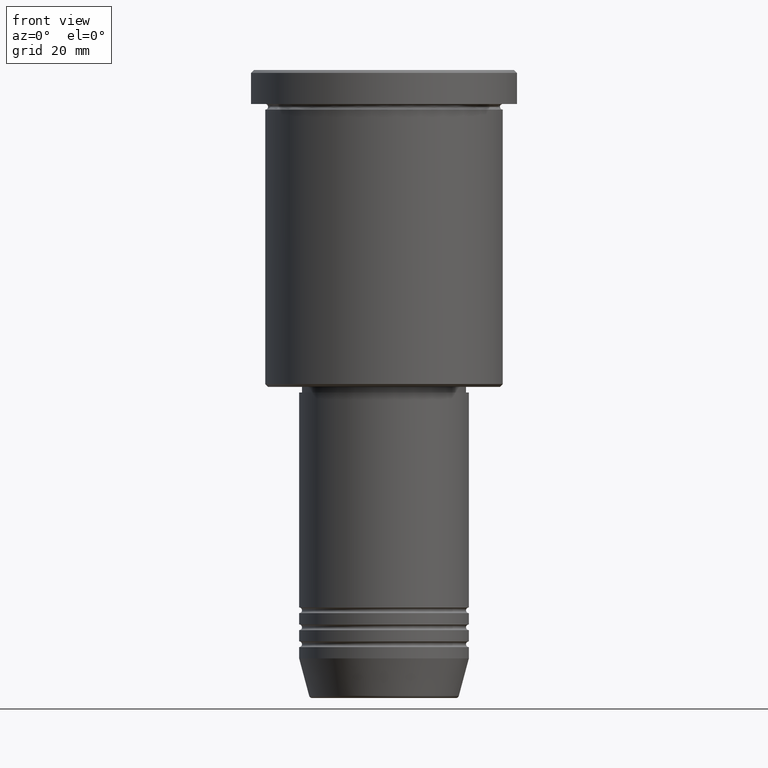
[diagram: clean part render]
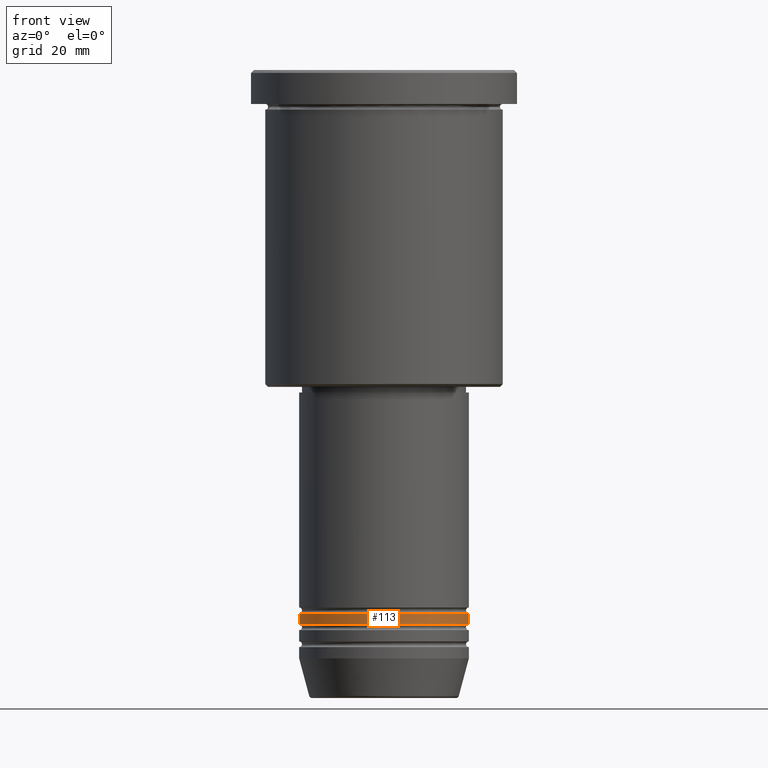
[diagram: same view with one face highlighted and labeled with its STEP entity id]
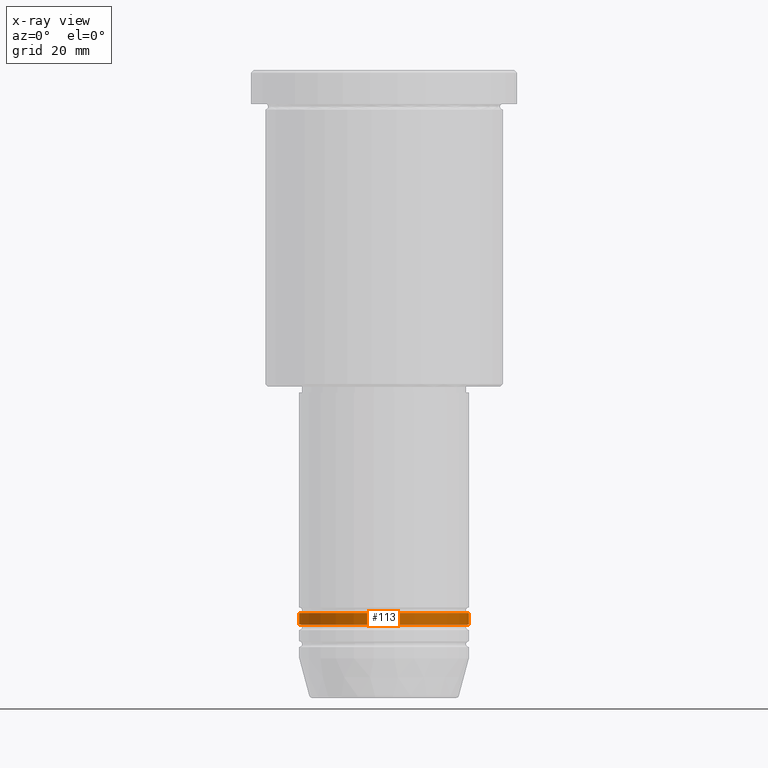
[diagram: x-ray of the same camera — body ghosted, the highlighted face saturated]
A machine part, front view. The second image highlights one B-rep face of the part: STEP entity #113.
The next image is the same camera in x-ray: the body ghosted, the highlighted face saturated — about 0% of this face is hidden behind the body in this view.
In plain terms, the highlighted cylindrical surface (partial cylindrical patch) has radius 15 mm, axis along (-0, -0, 1).
Its self-contained STEP definition (entity closure, byte-faithful):
#57 = DIRECTION ( 'NONE',  ( -0.000000000000000000, -0.000000000000000000, 1.000000000000000000 ) ) ;
#64 = FACE_OUTER_BOUND ( 'NONE', #1057, .T. ) ;
#105 = CARTESIAN_POINT ( 'NONE',  ( -15.00000000000000000, 1.836970198721029589E-15, -97.99999999999997158 ) ) ;
#108 = AXIS2_PLACEMENT_3D ( 'NONE', #229, #599, #958 ) ;
#113 = ADVANCED_FACE ( 'NONE', ( #64 ), #794, .T. ) ;
#184 = CARTESIAN_POINT ( 'NONE',  ( 0.000000000000000000, 0.000000000000000000, -97.99999999999997158 ) ) ;
#187 = EDGE_CURVE ( 'NONE', #1013, #789, #912, .T. ) ;
#229 = CARTESIAN_POINT ( 'NONE',  ( 0.000000000000000000, 0.000000000000000000, -95.99999999999998579 ) ) ;
#248 = CARTESIAN_POINT ( 'NONE',  ( 0.000000000000000000, 0.000000000000000000, 0.000000000000000000 ) ) ;
#327 = VERTEX_POINT ( 'NONE', #105 ) ;
#341 = VERTEX_POINT ( 'NONE', #402 ) ;
#370 = AXIS2_PLACEMENT_3D ( 'NONE', #248, #426, #970 ) ;
#397 = DIRECTION ( 'NONE',  ( -0.000000000000000000, -0.000000000000000000, 1.000000000000000000 ) ) ;
#402 = CARTESIAN_POINT ( 'NONE',  ( 15.00000000000000000, 0.000000000000000000, -97.99999999999997158 ) ) ;
#426 = DIRECTION ( 'NONE',  ( -0.000000000000000000, -0.000000000000000000, 1.000000000000000000 ) ) ;
#493 = ORIENTED_EDGE ( 'NONE', *, *, #714, .T. ) ;
#499 = LINE ( 'NONE', #524, #701 ) ;
#501 = ORIENTED_EDGE ( 'NONE', *, *, #575, .F. ) ;
#524 = CARTESIAN_POINT ( 'NONE',  ( -15.00000000000000000, 1.836970198721029589E-15, 0.000000000000000000 ) ) ;
#557 = CARTESIAN_POINT ( 'NONE',  ( 15.00000000000000000, 0.000000000000000000, 0.000000000000000000 ) ) ;
#575 = EDGE_CURVE ( 'NONE', #327, #1013, #499, .T. ) ;
#596 = CARTESIAN_POINT ( 'NONE',  ( 15.00000000000000000, 0.000000000000000000, -95.99999999999998579 ) ) ;
#599 = DIRECTION ( 'NONE',  ( -0.000000000000000000, -0.000000000000000000, 1.000000000000000000 ) ) ;
#621 = CARTESIAN_POINT ( 'NONE',  ( -15.00000000000000000, 1.836970198721029589E-15, -95.99999999999998579 ) ) ;
#640 = DIRECTION ( 'NONE',  ( -0.000000000000000000, -0.000000000000000000, 1.000000000000000000 ) ) ;
#701 = VECTOR ( 'NONE', #57, 1000.000000000000000 ) ;
#714 = EDGE_CURVE ( 'NONE', #327, #341, #757, .T. ) ;
#716 = VECTOR ( 'NONE', #640, 1000.000000000000000 ) ;
#757 = CIRCLE ( 'NONE', #876, 15.00000000000000000 ) ;
#789 = VERTEX_POINT ( 'NONE', #596 ) ;
#794 = CYLINDRICAL_SURFACE ( 'NONE', #370, 15.00000000000000000 ) ;
#806 = ORIENTED_EDGE ( 'NONE', *, *, #187, .F. ) ;
#876 = AXIS2_PLACEMENT_3D ( 'NONE', #184, #397, #1035 ) ;
#912 = CIRCLE ( 'NONE', #108, 15.00000000000000000 ) ;
#958 = DIRECTION ( 'NONE',  ( 1.000000000000000000, 0.000000000000000000, 0.000000000000000000 ) ) ;
#970 = DIRECTION ( 'NONE',  ( 1.000000000000000000, 0.000000000000000000, 0.000000000000000000 ) ) ;
#986 = EDGE_CURVE ( 'NONE', #341, #789, #1103, .T. ) ;
#1013 = VERTEX_POINT ( 'NONE', #621 ) ;
#1035 = DIRECTION ( 'NONE',  ( 1.000000000000000000, 0.000000000000000000, 0.000000000000000000 ) ) ;
#1057 = EDGE_LOOP ( 'NONE', ( #501, #493, #1150, #806 ) ) ;
#1103 = LINE ( 'NONE', #557, #716 ) ;
#1150 = ORIENTED_EDGE ( 'NONE', *, *, #986, .T. ) ;